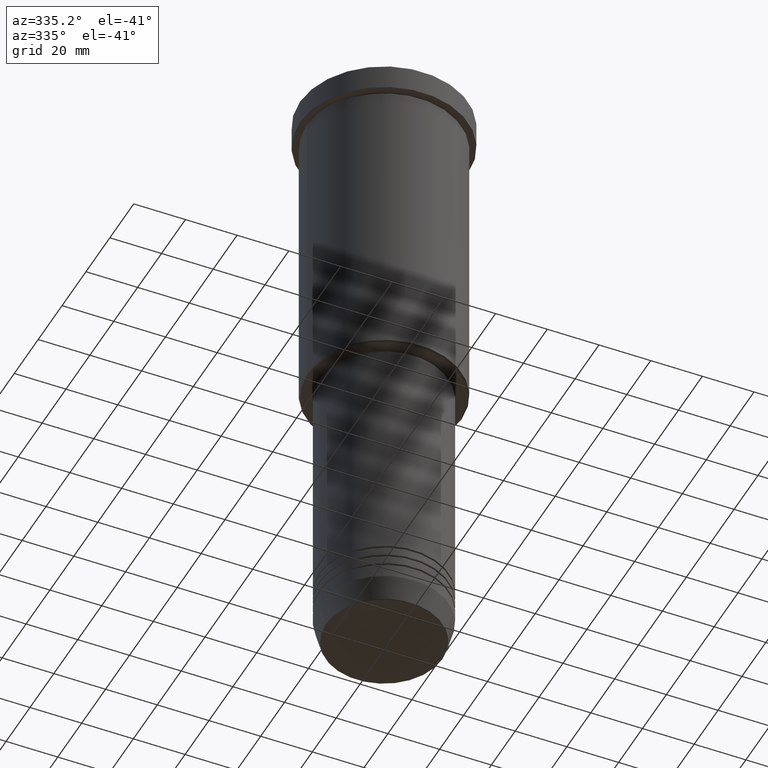
[diagram: clean part render]
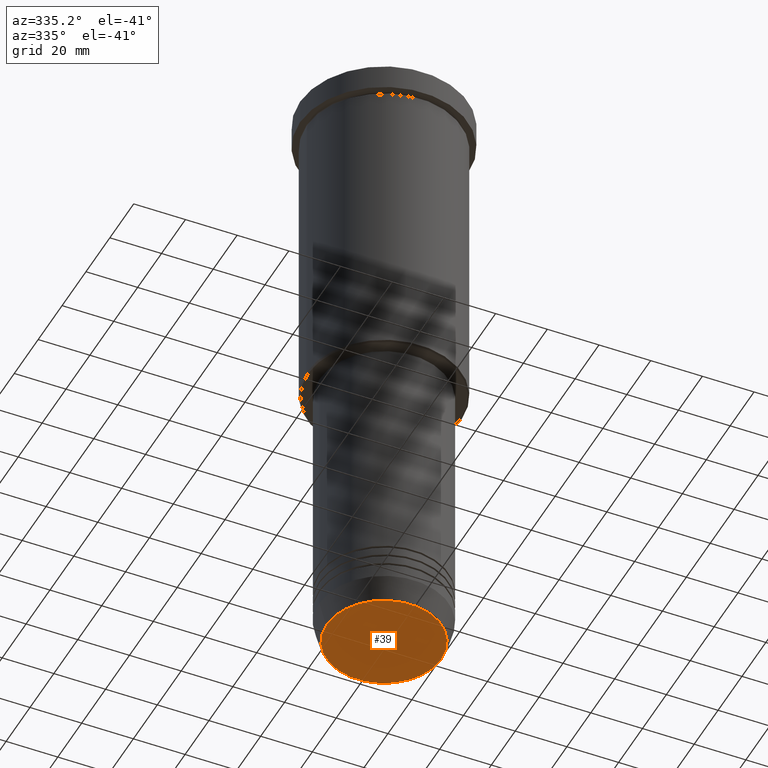
[diagram: same view with one face highlighted and labeled with its STEP entity id]
A machine part, auxiliary view. The second image highlights one B-rep face of the part: STEP entity #39.
In plain terms, the highlighted planar face has unit normal (0, -0, 1).
Its self-contained STEP definition (entity closure, byte-faithful):
#22 = CIRCLE ( 'NONE', #239, 22.20479377413041533 ) ;
#39 = ADVANCED_FACE ( 'NONE', ( #1059 ), #859, .F. ) ;
#65 = VERTEX_POINT ( 'NONE', #1080 ) ;
#112 = CARTESIAN_POINT ( 'NONE',  ( 0.000000000000000000, 0.000000000000000000, -240.0000000000000000 ) ) ;
#119 = DIRECTION ( 'NONE',  ( 1.000000000000000000, 0.000000000000000000, 0.000000000000000000 ) ) ;
#152 = DIRECTION ( 'NONE',  ( 0.000000000000000000, -0.000000000000000000, 1.000000000000000000 ) ) ;
#175 = EDGE_CURVE ( 'NONE', #65, #927, #640, .T. ) ;
#225 = CARTESIAN_POINT ( 'NONE',  ( 0.000000000000000000, 0.000000000000000000, -240.0000000000000000 ) ) ;
#239 = AXIS2_PLACEMENT_3D ( 'NONE', #112, #919, #633 ) ;
#275 = AXIS2_PLACEMENT_3D ( 'NONE', #225, #302, #119 ) ;
#279 = CARTESIAN_POINT ( 'NONE',  ( 22.20479377413041533, 0.000000000000000000, -240.0000000000000000 ) ) ;
#302 = DIRECTION ( 'NONE',  ( 0.000000000000000000, 0.000000000000000000, -1.000000000000000000 ) ) ;
#334 = EDGE_CURVE ( 'NONE', #927, #65, #22, .T. ) ;
#511 = DIRECTION ( 'NONE',  ( 1.000000000000000000, 0.000000000000000000, 0.000000000000000000 ) ) ;
#597 = CARTESIAN_POINT ( 'NONE',  ( 0.000000000000000000, 0.000000000000000000, -240.0000000000000000 ) ) ;
#633 = DIRECTION ( 'NONE',  ( 1.000000000000000000, 0.000000000000000000, 0.000000000000000000 ) ) ;
#640 = CIRCLE ( 'NONE', #275, 22.20479377413041533 ) ;
#859 = PLANE ( 'NONE',  #898 ) ;
#898 = AXIS2_PLACEMENT_3D ( 'NONE', #597, #152, #511 ) ;
#912 = ORIENTED_EDGE ( 'NONE', *, *, #334, .T. ) ;
#919 = DIRECTION ( 'NONE',  ( 0.000000000000000000, 0.000000000000000000, -1.000000000000000000 ) ) ;
#927 = VERTEX_POINT ( 'NONE', #279 ) ;
#1059 = FACE_OUTER_BOUND ( 'NONE', #1175, .T. ) ;
#1080 = CARTESIAN_POINT ( 'NONE',  ( -22.20479377413041533, 2.748875911406055577E-15, -240.0000000000000000 ) ) ;
#1137 = ORIENTED_EDGE ( 'NONE', *, *, #175, .T. ) ;
#1175 = EDGE_LOOP ( 'NONE', ( #912, #1137 ) ) ;